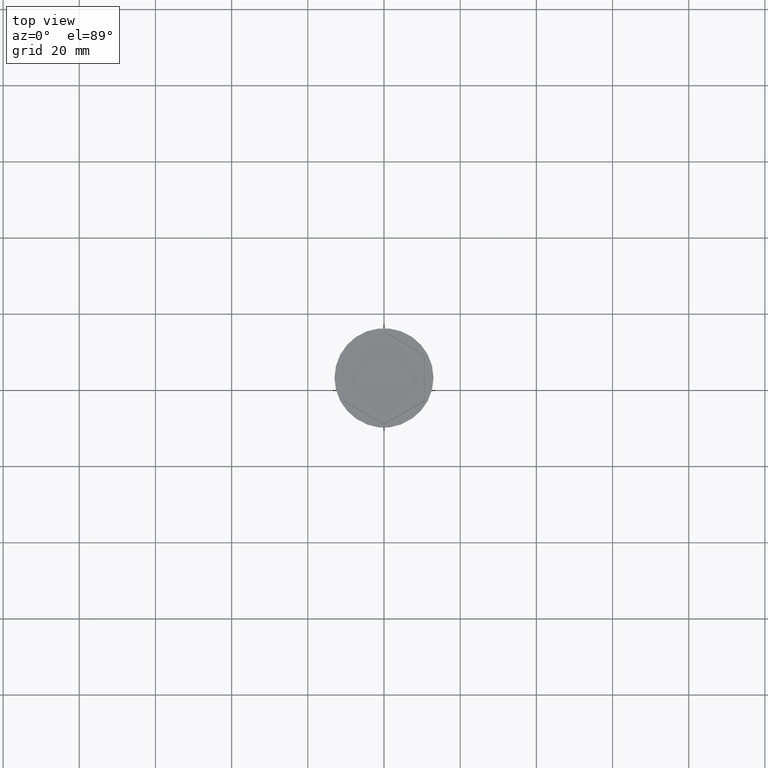
[diagram: clean part render]
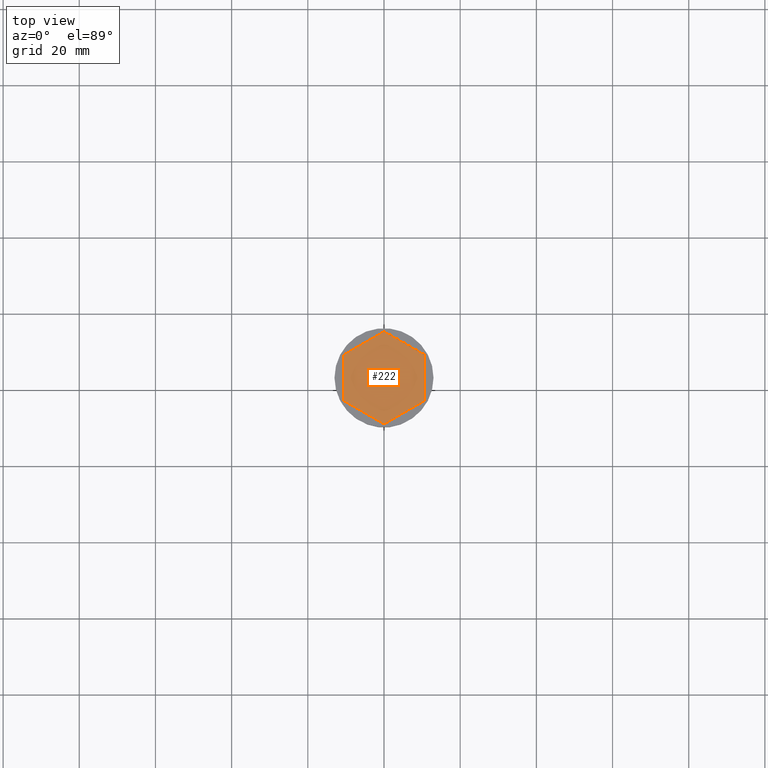
[diagram: same view with one face highlighted and labeled with its STEP entity id]
A machine part, top view. The second image highlights one B-rep face of the part: STEP entity #222.
In plain terms, the highlighted planar face has unit normal (-0, 0, 1).
Its self-contained STEP definition (entity closure, byte-faithful):
#30 = CARTESIAN_POINT ( 'NONE',  ( 10.49999999999999822, 0.000000000000000000, -2.000000000000000000 ) ) ;
#54 = LINE ( 'NONE', #276, #88 ) ;
#61 = DIRECTION ( 'NONE',  ( -0.8660254037844387076, 0.4999999999999997224, 0.000000000000000000 ) ) ;
#69 = CARTESIAN_POINT ( 'NONE',  ( 10.49999999999999822, -6.062177826491069510, -2.000000000000000000 ) ) ;
#81 = VERTEX_POINT ( 'NONE', #883 ) ;
#88 = VECTOR ( 'NONE', #61, 1000.000000000000114 ) ;
#100 = CARTESIAN_POINT ( 'NONE',  ( -5.249999999999997335, 9.093266739736602489, -2.000000000000000000 ) ) ;
#114 = VECTOR ( 'NONE', #589, 999.9999999999998863 ) ;
#137 = VERTEX_POINT ( 'NONE', #1189 ) ;
#197 = CARTESIAN_POINT ( 'NONE',  ( -5.249999999999998224, -9.093266739736606041, -2.000000000000000000 ) ) ;
#203 = LINE ( 'NONE', #197, #1022 ) ;
#212 = AXIS2_PLACEMENT_3D ( 'NONE', #1299, #1524, #1398 ) ;
#222 = ADVANCED_FACE ( 'NONE', ( #552 ), #1291, .T. ) ;
#227 = ORIENTED_EDGE ( 'NONE', *, *, #372, .T. ) ;
#233 = CARTESIAN_POINT ( 'NONE',  ( -10.49999999999999822, 0.000000000000000000, -2.000000000000000000 ) ) ;
#276 = CARTESIAN_POINT ( 'NONE',  ( 5.249999999999996447, 9.093266739736606041, -2.000000000000000000 ) ) ;
#326 = LINE ( 'NONE', #100, #114 ) ;
#372 = EDGE_CURVE ( 'NONE', #545, #137, #326, .T. ) ;
#518 = CARTESIAN_POINT ( 'NONE',  ( 0.000000000000000000, 12.12435565298213724, -2.000000000000000000 ) ) ;
#536 = CARTESIAN_POINT ( 'NONE',  ( 5.250000000000000000, -9.093266739736604265, -2.000000000000000000 ) ) ;
#545 = VERTEX_POINT ( 'NONE', #518 ) ;
#552 = FACE_OUTER_BOUND ( 'NONE', #932, .T. ) ;
#560 = EDGE_CURVE ( 'NONE', #1336, #545, #54, .T. ) ;
#589 = DIRECTION ( 'NONE',  ( -0.8660254037844387076, -0.5000000000000001110, 0.000000000000000000 ) ) ;
#590 = EDGE_CURVE ( 'NONE', #719, #1229, #1016, .T. ) ;
#601 = VECTOR ( 'NONE', #863, 1000.000000000000000 ) ;
#663 = ORIENTED_EDGE ( 'NONE', *, *, #1207, .T. ) ;
#683 = EDGE_CURVE ( 'NONE', #1229, #1336, #1270, .T. ) ;
#719 = VERTEX_POINT ( 'NONE', #1186 ) ;
#759 = ORIENTED_EDGE ( 'NONE', *, *, #683, .T. ) ;
#800 = DIRECTION ( 'NONE',  ( 0.8660254037844387076, -0.4999999999999998890, 0.000000000000000000 ) ) ;
#863 = DIRECTION ( 'NONE',  ( 0.000000000000000000, -1.000000000000000000, 0.000000000000000000 ) ) ;
#883 = CARTESIAN_POINT ( 'NONE',  ( -10.49999999999999822, -6.062177826491072175, -2.000000000000000000 ) ) ;
#904 = DIRECTION ( 'NONE',  ( 0.8660254037844385966, 0.5000000000000001110, 0.000000000000000000 ) ) ;
#919 = EDGE_CURVE ( 'NONE', #137, #81, #979, .T. ) ;
#932 = EDGE_LOOP ( 'NONE', ( #1172, #227, #1588, #663, #1156, #759 ) ) ;
#937 = VECTOR ( 'NONE', #1164, 1000.000000000000000 ) ;
#979 = LINE ( 'NONE', #233, #601 ) ;
#998 = CARTESIAN_POINT ( 'NONE',  ( 10.49999999999999822, 6.062177826491071286, -2.000000000000000000 ) ) ;
#1016 = LINE ( 'NONE', #536, #1302 ) ;
#1022 = VECTOR ( 'NONE', #800, 1000.000000000000114 ) ;
#1156 = ORIENTED_EDGE ( 'NONE', *, *, #590, .T. ) ;
#1164 = DIRECTION ( 'NONE',  ( 0.000000000000000000, 1.000000000000000000, -0.000000000000000000 ) ) ;
#1172 = ORIENTED_EDGE ( 'NONE', *, *, #560, .T. ) ;
#1186 = CARTESIAN_POINT ( 'NONE',  ( 0.000000000000000000, -12.12435565298214080, -2.000000000000000000 ) ) ;
#1189 = CARTESIAN_POINT ( 'NONE',  ( -10.49999999999999822, 6.062177826491066845, -2.000000000000000000 ) ) ;
#1207 = EDGE_CURVE ( 'NONE', #81, #719, #203, .T. ) ;
#1229 = VERTEX_POINT ( 'NONE', #69 ) ;
#1270 = LINE ( 'NONE', #30, #937 ) ;
#1291 = PLANE ( 'NONE',  #212 ) ;
#1299 = CARTESIAN_POINT ( 'NONE',  ( 0.000000000000000000, 0.000000000000000000, -2.000000000000000000 ) ) ;
#1302 = VECTOR ( 'NONE', #904, 1000.000000000000000 ) ;
#1336 = VERTEX_POINT ( 'NONE', #998 ) ;
#1398 = DIRECTION ( 'NONE',  ( 1.000000000000000000, 0.000000000000000000, 0.000000000000000000 ) ) ;
#1524 = DIRECTION ( 'NONE',  ( -0.000000000000000000, 0.000000000000000000, 1.000000000000000000 ) ) ;
#1588 = ORIENTED_EDGE ( 'NONE', *, *, #919, .T. ) ;